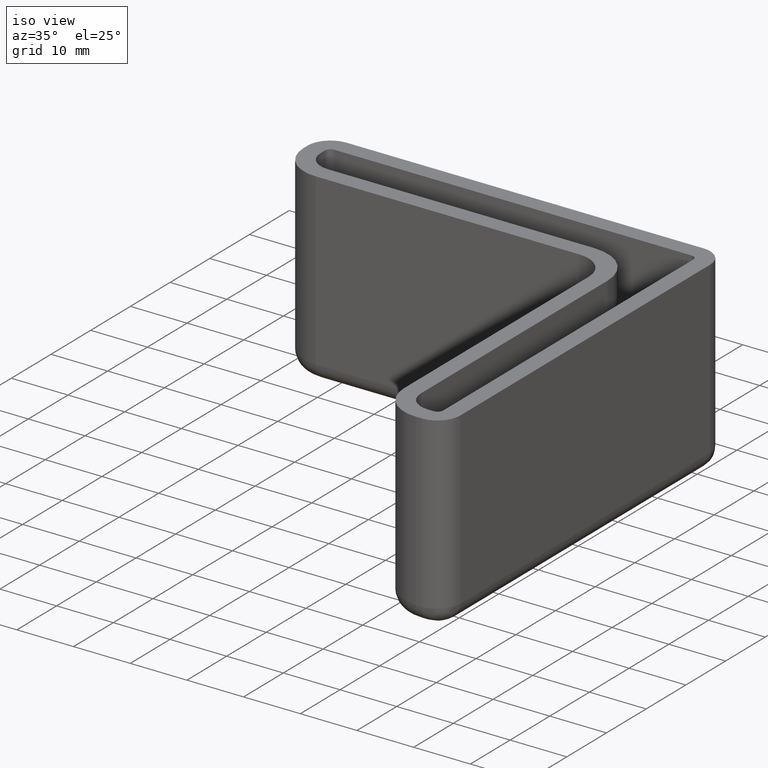
[diagram: clean part render]
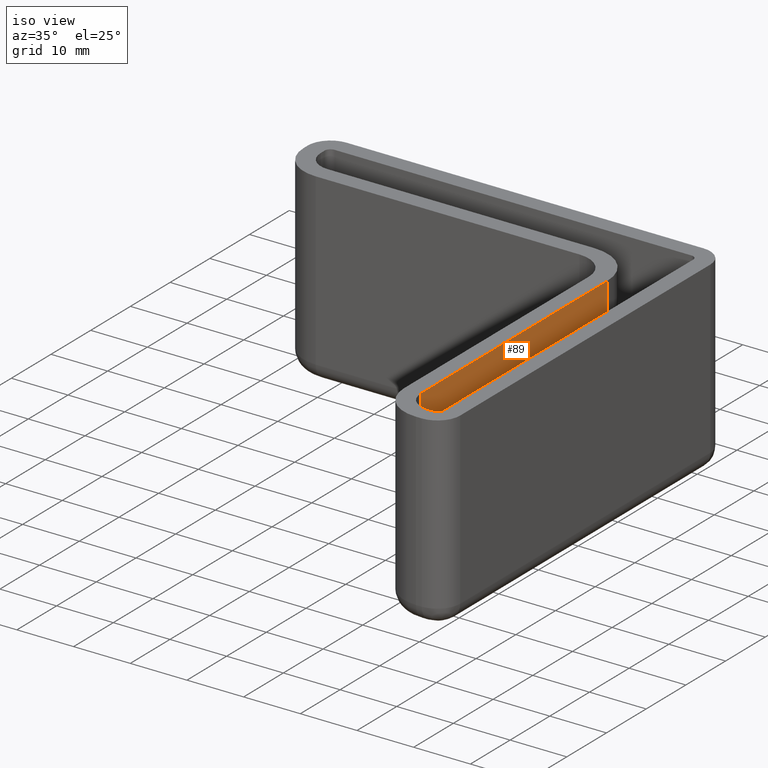
[diagram: same view with one face highlighted and labeled with its STEP entity id]
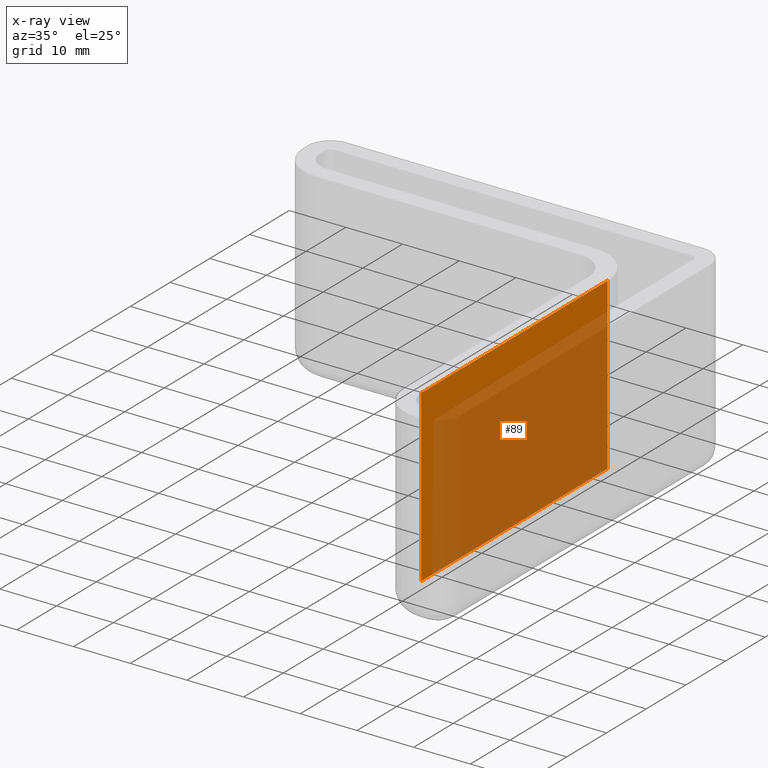
[diagram: x-ray of the same camera — body ghosted, the highlighted face saturated]
A machine part, iso view. The second image highlights one B-rep face of the part: STEP entity #89.
The next image is the same camera in x-ray: the body ghosted, the highlighted face saturated — about 77% of this face is hidden behind the body in this view.
In plain terms, the highlighted planar face has unit normal (-1, -0, 0).
Its self-contained STEP definition (entity closure, byte-faithful):
#89 = ADVANCED_FACE( '', ( #144 ), #145, .F. );
#144 = FACE_OUTER_BOUND( '', #223, .T. );
#145 = PLANE( '', #224 );
#223 = EDGE_LOOP( '', ( #444, #445, #446, #447 ) );
#224 = AXIS2_PLACEMENT_3D( '', #448, #449, #450 );
#444 = ORIENTED_EDGE( '', *, *, #674, .F. );
#445 = ORIENTED_EDGE( '', *, *, #661, .T. );
#446 = ORIENTED_EDGE( '', *, *, #673, .F. );
#447 = ORIENTED_EDGE( '', *, *, #652, .F. );
#448 = CARTESIAN_POINT( '', ( -6.00000000000000, -6.00000000000000, -30.0000000000000 ) );
#449 = DIRECTION( '', ( -1.00000000000000, -3.58732406867153E-049, 3.58678896750442E-017 ) );
#450 = DIRECTION( '', ( 3.58678896750442E-017, -8.65927457071936E-017, 1.00000000000000 ) );
#652 = EDGE_CURVE( '', #777, #757, #779, .T. );
#661 = EDGE_CURVE( '', #796, #794, #797, .T. );
#673 = EDGE_CURVE( '', #757, #794, #812, .T. );
#674 = EDGE_CURVE( '', #796, #777, #813, .T. );
#757 = VERTEX_POINT( '', #926 );
#777 = VERTEX_POINT( '', #951 );
#779 = LINE( '', #953, #954 );
#794 = VERTEX_POINT( '', #973 );
#796 = VERTEX_POINT( '', #975 );
#797 = LINE( '', #976, #977 );
#812 = LINE( '', #1001, #1002 );
#813 = LINE( '', #1003, #1004 );
#926 = CARTESIAN_POINT( '', ( -6.00000000000000, -14.0000000000000, 0.000000000000000 ) );
#951 = CARTESIAN_POINT( '', ( -5.99999999999999, -61.0000000000000, -6.93889390390723E-015 ) );
#953 = CARTESIAN_POINT( '', ( -6.00000000000000, -19.2500000000000, 0.000000000000000 ) );
#954 = VECTOR( '', #1146, 1000.00000000000 );
#973 = CARTESIAN_POINT( '', ( -6.00000000000000, -14.0000000000000, -30.0000000000000 ) );
#975 = CARTESIAN_POINT( '', ( -6.00000000000000, -61.0000000000000, -30.0000000000000 ) );
#976 = CARTESIAN_POINT( '', ( -5.99999999999999, -65.0000000000000, -30.0000000000000 ) );
#977 = VECTOR( '', #1163, 1000.00000000000 );
#1001 = CARTESIAN_POINT( '', ( -6.00000000000000, -14.0000000000000, -30.0000000000000 ) );
#1002 = VECTOR( '', #1179, 1000.00000000000 );
#1003 = CARTESIAN_POINT( '', ( -6.00000000000000, -61.0000000000000, -30.0000000000000 ) );
#1004 = VECTOR( '', #1180, 1000.00000000000 );
#1146 = DIRECTION( '', ( 0.000000000000000, 1.00000000000000, 8.65927457071935E-017 ) );
#1163 = DIRECTION( '', ( 0.000000000000000, 1.00000000000000, 8.65927457071935E-017 ) );
#1179 = DIRECTION( '', ( -3.58678896750442E-017, 8.65927457071936E-017, -1.00000000000000 ) );
#1180 = DIRECTION( '', ( 3.58678896750442E-017, -8.65927457071936E-017, 1.00000000000000 ) );